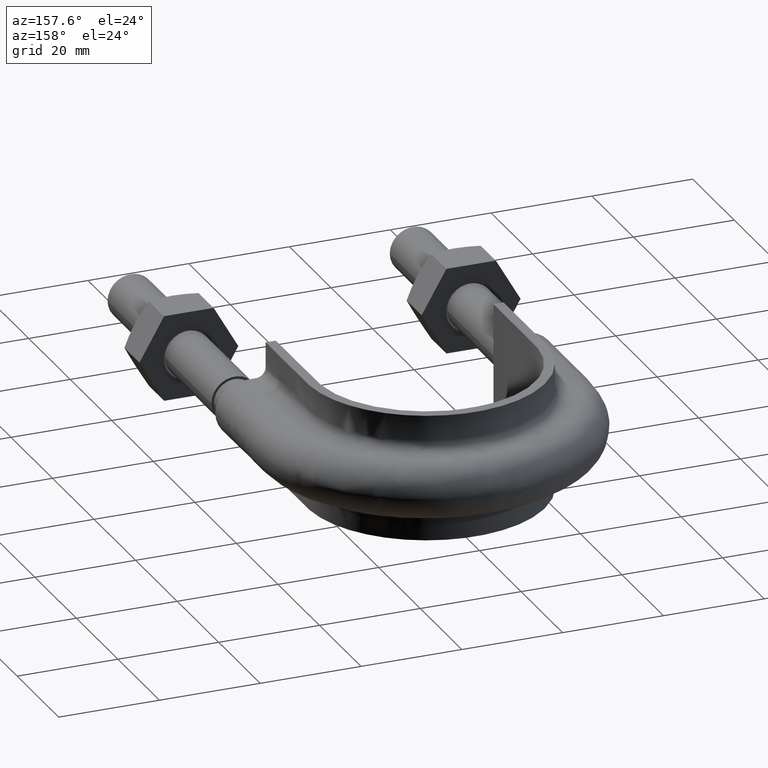
[diagram: clean part render]
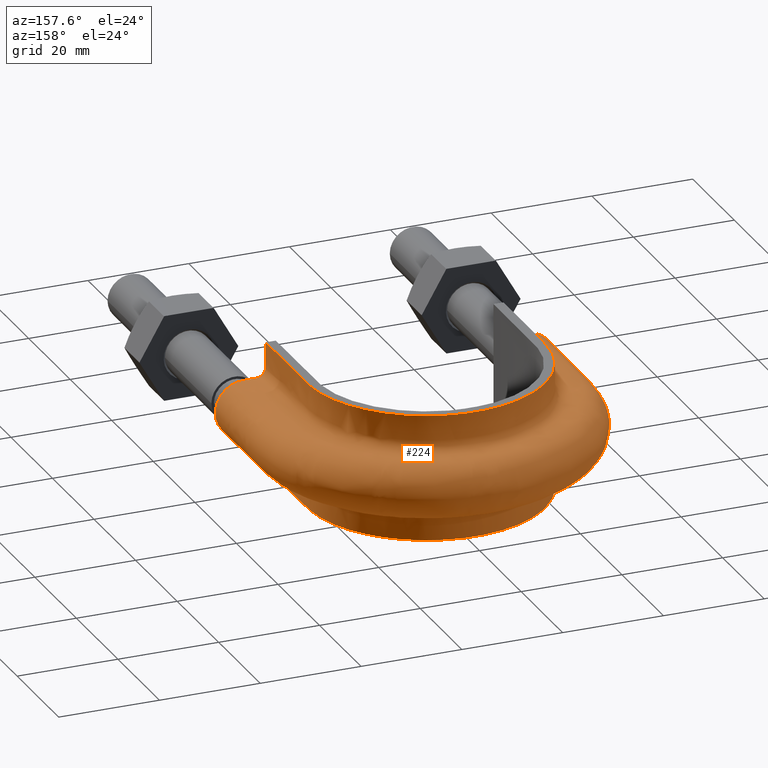
[diagram: same view with one face highlighted and labeled with its STEP entity id]
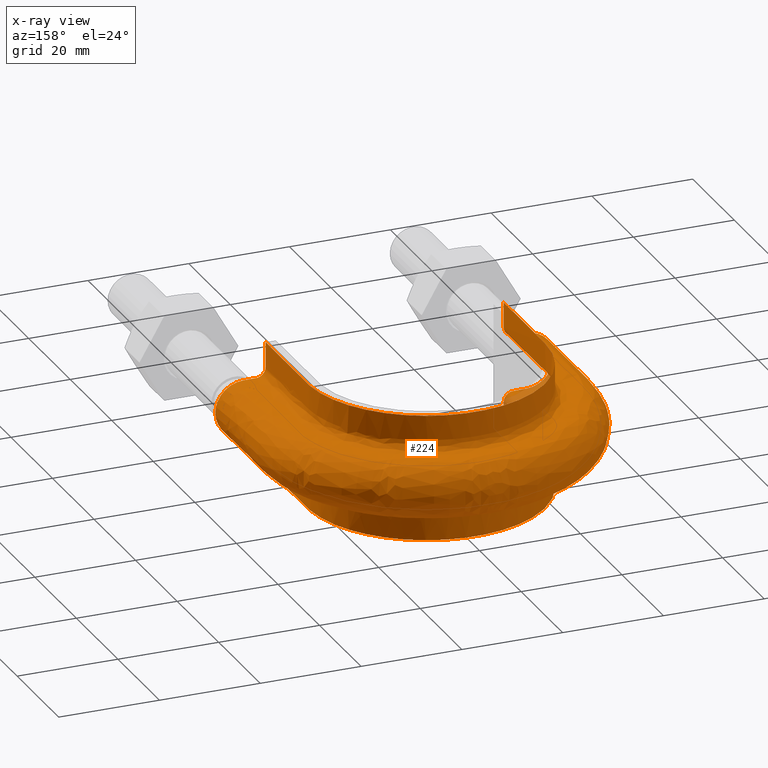
[diagram: x-ray of the same camera — body ghosted, the highlighted face saturated]
A machine part, auxiliary view. The second image highlights one B-rep face of the part: STEP entity #224.
The next image is the same camera in x-ray: the body ghosted, the highlighted face saturated — about 1% of this face is hidden behind the body in this view.
In plain terms, the highlighted face is a freeform B-spline surface patch.
Its self-contained STEP definition (entity closure, byte-faithful):
#224 = ADVANCED_FACE( '', ( #308 ), #309, .F. );
#308 = FACE_OUTER_BOUND( '', #481, .T. );
#309 = B_SPLINE_SURFACE_WITH_KNOTS( '', 3, 3, ( ( #482, #483, #484, #485, #486, #487, #488, #489, #490, #491, #492, #493, #494, #495, #496, #497, #498 ), ( #499, #500, #501, #502, #503, #504, #505, #506, #507, #508, #509, #510, #511, #512, #513, #514, #515 ), ( #516, #517, #518, #519, #520, #521, #522, #523, #524, #525, #526, #527, #528, #529, #530, #531, #532 ), ( #533, #534, #535, #536, #537, #538, #539, #540, #541, #542, #543, #544, #545, #546, #547, #548, #549 ), ( #550, #551, #552, #553, #554, #555, #556, #557, #558, #559, #560, #561, #562, #563, #564, #565, #566 ), ( #567, #568, #569, #570, #571, #572, #573, #574, #575, #576, #577, #578, #579, #580, #581, #582, #583 ), ( #584, #585, #586, #587, #588, #589, #590, #591, #592, #593, #594, #595, #596, #597, #598, #599, #600 ), ( #601, #602, #603, #604, #605, #606, #607, #608, #609, #610, #611, #612, #613, #614, #615, #616, #617 ), ( #618, #619, #620, #621, #622, #623, #624, #625, #626, #627, #628, #629, #630, #631, #632, #633, #634 ), ( #635, #636, #637, #638, #639, #640, #641, #642, #643, #644, #645, #646, #647, #648, #649, #650, #651 ), ( #652, #653, #654, #655, #656, #657, #658, #659, #660, #661, #662, #663, #664, #665, #666, #667, #668 ), ( #669, #670, #671, #672, #673, #674, #675, #676, #677, #678, #679, #680, #681, #682, #683, #684, #685 ), ( #686, #687, #688, #689, #690, #691, #692, #693, #694, #695, #696, #697, #698, #699, #700, #701, #702 ), ( #703, #704, #705, #706, #707, #708, #709, #710, #711, #712, #713, #714, #715, #716, #717, #718, #719 ), ( #720, #721, #722, #723, #724, #725, #726, #727, #728, #729, #730, #731, #732, #733, #734, #735, #736 ), ( #737, #738, #739, #740, #741, #742, #743, #744, #745, #746, #747, #748, #749, #750, #751, #752, #753 ), ( #754, #755, #756, #757, #758, #759, #760, #761, #762, #763, #764, #765, #766, #767, #768, #769, #770 ), ( #771, #772, #773, #774, #775, #776, #777, #778, #779, #780, #781, #782, #783, #784, #785, #786, #787 ), ( #788, #789, #790, #791, #792, #793, #794, #795, #796, #797, #798, #799, #800, #801, #802, #803, #804 ), ( #805, #806, #807, #808, #809, #810, #811, #812, #813, #814, #815, #816, #817, #818, #819, #820, #821 ), ( #822, #823, #824, #825, #826, #827, #828, #829, #830, #831, #832, #833, #834, #835, #836, #837, #838 ), ( #839, #840, #841, #842, #843, #844, #845, #846, #847, #848, #849, #850, #851, #852, #853, #854, #855 ), ( #856, #857, #858, #859, #860, #861, #862, #863, #864, #865, #866, #867, #868, #869, #870, #871, #872 ), ( #873, #874, #875, #876, #877, #878, #879, #880, #881, #882, #883, #884, #885, #886, #887, #888, #889 ), ( #890, #891, #892, #893, #894, #895, #896, #897, #898, #899, #900, #901, #902, #903, #904, #905, #906 ), ( #907, #908, #909, #910, #911, #912, #913, #914, #915, #916, #917, #918, #919, #920, #921, #922, #923 ), ( #924, #925, #926, #927, #928, #929, #930, #931, #932, #933, #934, #935, #936, #937, #938, #939, #940 ), ( #941, #942, #943, #944, #945, #946, #947, #948, #949, #950, #951, #952, #953, #954, #955, #956, #957 ), ( #958, #959, #960, #961, #962, #963, #964, #965, #966, #967, #968, #969, #970, #971, #972, #973, #974 ), ( #975, #976, #977, #978, #979, #980, #981, #982, #983, #984, #985, #986, #987, #988, #989, #990, #991 ), ( #992, #993, #994, #995, #996, #997, #998, #999, #1000, #1001, #1002, #1003, #1004, #1005, #1006, #1007, #1008 ) ), .UNSPECIFIED., .F., .F., .F., ( 4, 3, 1, 1, 1, 3, 3, 1, 1, 1, 3, 3, 1, 1, 1, 3, 4 ), ( 4, 3, 1, 1, 1, 1, 1, 1, 1, 3, 4 ), ( 0.000000000000000, 0.0526315789473684, 0.105263157894737, 0.157894736842105, 0.210526315789474, 0.263157894736842, 0.315789473684211, 0.368421052631579, 0.421052631578947, 0.473684210526316, 0.526315789473684, 0.578947368421053, 0.631578947368421, 0.684210526315789, 0.736842105263158, 0.789473684210526, 0.842105263157895 ), ( 0.000000000000000, 1.00000000000000, 1.50000000000000, 2.00000000000000, 3.00000000000000, 4.00000000000000, 5.00000000000000, 6.00000000000000, 6.50000000000000, 7.00000000000000, 8.00000000000000 ), .UNSPECIFIED. );
#481 = EDGE_LOOP( '', ( #1517, #1518, #1519, #1520 ) );
#482 = CARTESIAN_POINT( '', ( -23.6000000000000, 51.3000000000000, 12.5000000000000 ) );
#483 = CARTESIAN_POINT( '', ( -23.6000000000000, 59.0000000000000, 12.5000000000000 ) );
#484 = CARTESIAN_POINT( '', ( -23.6000000000000, 66.7000000000000, 12.5000000000000 ) );
#485 = CARTESIAN_POINT( '', ( -23.6000000000000, 74.4000000000000, 12.5000000000000 ) );
#486 = CARTESIAN_POINT( '', ( -23.6000000000000, 76.4494146737192, 12.5000000000000 ) );
#487 = CARTESIAN_POINT( '', ( -23.0467901016320, 80.5795237676995, 12.5000000000000 ) );
#488 = CARTESIAN_POINT( '', ( -19.8875260981763, 88.2564442335818, 12.5000000000000 ) );
#489 = CARTESIAN_POINT( '', ( -12.3513075479443, 95.7943830592662, 12.5000000000000 ) );
#490 = CARTESIAN_POINT( '', ( 1.77740441903700E-014, 99.1028084703669, 12.5000000000000 ) );
#491 = CARTESIAN_POINT( '', ( 12.3513075479443, 95.7943830592661, 12.5000000000000 ) );
#492 = CARTESIAN_POINT( '', ( 19.8875260981763, 88.2564442335818, 12.5000000000000 ) );
#493 = CARTESIAN_POINT( '', ( 23.0467901016320, 80.5795237676995, 12.5000000000000 ) );
#494 = CARTESIAN_POINT( '', ( 23.6000000000000, 76.4494146737192, 12.5000000000000 ) );
#495 = CARTESIAN_POINT( '', ( 23.6000000000000, 74.4000000000000, 12.5000000000000 ) );
#496 = CARTESIAN_POINT( '', ( 23.6000000000000, 66.7000000000000, 12.5000000000000 ) );
#497 = CARTESIAN_POINT( '', ( 23.6000000000000, 59.0000000000000, 12.5000000000000 ) );
#498 = CARTESIAN_POINT( '', ( 23.6000000000000, 51.3000000000000, 12.5000000000000 ) );
#499 = CARTESIAN_POINT( '', ( -23.6000000000000, 51.3000000000000, 10.8666666666667 ) );
#500 = CARTESIAN_POINT( '', ( -23.6000000000000, 59.0000000000000, 10.8666666666667 ) );
#501 = CARTESIAN_POINT( '', ( -23.6000000000000, 66.7000000000000, 10.8666666666667 ) );
#502 = CARTESIAN_POINT( '', ( -23.6000000000000, 74.4000000000000, 10.8666666666667 ) );
#503 = CARTESIAN_POINT( '', ( -23.6000000000000, 76.4494146737192, 10.8666666666667 ) );
#504 = CARTESIAN_POINT( '', ( -23.0467901016320, 80.5795237676995, 10.8666666666667 ) );
#505 = CARTESIAN_POINT( '', ( -19.8875260981763, 88.2564442335818, 10.8666666666667 ) );
#506 = CARTESIAN_POINT( '', ( -12.3513075479443, 95.7943830592662, 10.8666666666667 ) );
#507 = CARTESIAN_POINT( '', ( 1.95087676663468E-014, 99.1028084703669, 10.8666666666667 ) );
#508 = CARTESIAN_POINT( '', ( 12.3513075479443, 95.7943830592661, 10.8666666666667 ) );
#509 = CARTESIAN_POINT( '', ( 19.8875260981763, 88.2564442335818, 10.8666666666667 ) );
#510 = CARTESIAN_POINT( '', ( 23.0467901016320, 80.5795237676995, 10.8666666666667 ) );
#511 = CARTESIAN_POINT( '', ( 23.6000000000000, 76.4494146737192, 10.8666666666667 ) );
#512 = CARTESIAN_POINT( '', ( 23.6000000000000, 74.4000000000000, 10.8666666666667 ) );
#513 = CARTESIAN_POINT( '', ( 23.6000000000000, 66.7000000000000, 10.8666666666667 ) );
#514 = CARTESIAN_POINT( '', ( 23.6000000000000, 59.0000000000000, 10.8666666666667 ) );
#515 = CARTESIAN_POINT( '', ( 23.6000000000000, 51.3000000000000, 10.8666666666667 ) );
#516 = CARTESIAN_POINT( '', ( -23.6000000000000, 51.3000000000000, 9.23333333333332 ) );
#517 = CARTESIAN_POINT( '', ( -23.6000000000000, 59.0000000000000, 9.23333333333332 ) );
#518 = CARTESIAN_POINT( '', ( -23.6000000000000, 66.7000000000000, 9.23333333333332 ) );
#519 = CARTESIAN_POINT( '', ( -23.6000000000000, 74.4000000000000, 9.23333333333332 ) );
#520 = CARTESIAN_POINT( '', ( -23.6000000000000, 76.4494146737192, 9.23333333333332 ) );
#521 = CARTESIAN_POINT( '', ( -23.0467901016320, 80.5795237676995, 9.23333333333333 ) );
#522 = CARTESIAN_POINT( '', ( -19.8875260981763, 88.2564442335818, 9.23333333333332 ) );
#523 = CARTESIAN_POINT( '', ( -12.3513075479443, 95.7943830592662, 9.23333333333332 ) );
#524 = CARTESIAN_POINT( '', ( 1.95087676663468E-014, 99.1028084703669, 9.23333333333332 ) );
#525 = CARTESIAN_POINT( '', ( 12.3513075479443, 95.7943830592661, 9.23333333333332 ) );
#526 = CARTESIAN_POINT( '', ( 19.8875260981763, 88.2564442335818, 9.23333333333332 ) );
#527 = CARTESIAN_POINT( '', ( 23.0467901016320, 80.5795237676995, 9.23333333333332 ) );
#528 = CARTESIAN_POINT( '', ( 23.6000000000000, 76.4494146737192, 9.23333333333332 ) );
#529 = CARTESIAN_POINT( '', ( 23.6000000000000, 74.4000000000000, 9.23333333333332 ) );
#530 = CARTESIAN_POINT( '', ( 23.6000000000000, 66.7000000000000, 9.23333333333332 ) );
#531 = CARTESIAN_POINT( '', ( 23.6000000000000, 59.0000000000000, 9.23333333333332 ) );
#532 = CARTESIAN_POINT( '', ( 23.6000000000000, 51.3000000000000, 9.23333333333332 ) );
#533 = CARTESIAN_POINT( '', ( -23.6000000000000, 51.3000000000000, 7.59999999999998 ) );
#534 = CARTESIAN_POINT( '', ( -23.6000000000000, 59.0000000000000, 7.59999999999998 ) );
#535 = CARTESIAN_POINT( '', ( -23.6000000000000, 66.7000000000000, 7.59999999999998 ) );
#536 = CARTESIAN_POINT( '', ( -23.6000000000000, 74.4000000000000, 7.59999999999998 ) );
#537 = CARTESIAN_POINT( '', ( -23.6000000000000, 76.4494146737192, 7.59999999999998 ) );
#538 = CARTESIAN_POINT( '', ( -23.0467901016320, 80.5795237676995, 7.59999999999999 ) );
#539 = CARTESIAN_POINT( '', ( -19.8875260981763, 88.2564442335818, 7.59999999999998 ) );
#540 = CARTESIAN_POINT( '', ( -12.3513075479443, 95.7943830592662, 7.59999999999998 ) );
#541 = CARTESIAN_POINT( '', ( 1.95087676663468E-014, 99.1028084703669, 7.59999999999998 ) );
#542 = CARTESIAN_POINT( '', ( 12.3513075479443, 95.7943830592661, 7.59999999999998 ) );
#543 = CARTESIAN_POINT( '', ( 19.8875260981763, 88.2564442335818, 7.59999999999998 ) );
#544 = CARTESIAN_POINT( '', ( 23.0467901016320, 80.5795237676995, 7.59999999999998 ) );
#545 = CARTESIAN_POINT( '', ( 23.6000000000000, 76.4494146737192, 7.59999999999998 ) );
#546 = CARTESIAN_POINT( '', ( 23.6000000000000, 74.4000000000000, 7.59999999999998 ) );
#547 = CARTESIAN_POINT( '', ( 23.6000000000000, 66.7000000000000, 7.59999999999998 ) );
#548 = CARTESIAN_POINT( '', ( 23.6000000000000, 59.0000000000000, 7.59999999999998 ) );
#549 = CARTESIAN_POINT( '', ( 23.6000000000000, 51.3000000000000, 7.59999999999998 ) );
#550 = CARTESIAN_POINT( '', ( -23.6000000000000, 51.3000000000000, 7.33823584172332 ) );
#551 = CARTESIAN_POINT( '', ( -23.6000000000000, 59.0000000000000, 7.33823584172332 ) );
#552 = CARTESIAN_POINT( '', ( -23.6000000000000, 66.7000000000000, 7.33823584172332 ) );
#553 = CARTESIAN_POINT( '', ( -23.6000000000000, 74.4000000000000, 7.33823584172332 ) );
#554 = CARTESIAN_POINT( '', ( -23.6000000000000, 76.4494146737192, 7.33823584172332 ) );
#555 = CARTESIAN_POINT( '', ( -23.0467901016320, 80.5795237676995, 7.33823584172333 ) );
#556 = CARTESIAN_POINT( '', ( -19.8875260981763, 88.2564442335818, 7.33823584172331 ) );
#557 = CARTESIAN_POINT( '', ( -12.3513075479443, 95.7943830592662, 7.33823584172332 ) );
#558 = CARTESIAN_POINT( '', ( 1.95087676663468E-014, 99.1028084703669, 7.33823584172332 ) );
#559 = CARTESIAN_POINT( '', ( 12.3513075479443, 95.7943830592661, 7.33823584172332 ) );
#560 = CARTESIAN_POINT( '', ( 19.8875260981763, 88.2564442335818, 7.33823584172332 ) );
#561 = CARTESIAN_POINT( '', ( 23.0467901016320, 80.5795237676995, 7.33823584172332 ) );
#562 = CARTESIAN_POINT( '', ( 23.6000000000000, 76.4494146737192, 7.33823584172332 ) );
#563 = CARTESIAN_POINT( '', ( 23.6000000000000, 74.4000000000000, 7.33823584172332 ) );
#564 = CARTESIAN_POINT( '', ( 23.6000000000000, 66.7000000000000, 7.33823584172332 ) );
#565 = CARTESIAN_POINT( '', ( 23.6000000000000, 59.0000000000000, 7.33823584172332 ) );
#566 = CARTESIAN_POINT( '', ( 23.6000000000000, 51.3000000000000, 7.33823584172332 ) );
#567 = CARTESIAN_POINT( '', ( -23.7041362568359, 51.3000000000000, 6.81470752516999 ) );
#568 = CARTESIAN_POINT( '', ( -23.7041362568359, 59.0000000000000, 6.81470752516999 ) );
#569 = CARTESIAN_POINT( '', ( -23.7041362568359, 66.7000000000000, 6.81470752516999 ) );
#570 = CARTESIAN_POINT( '', ( -23.7041362568359, 74.4000000000000, 6.81470752516999 ) );
#571 = CARTESIAN_POINT( '', ( -23.7041362568359, 76.4587157490265, 6.81470752516999 ) );
#572 = CARTESIAN_POINT( '', ( -23.1485304899896, 80.6066866855034, 6.81470752517000 ) );
#573 = CARTESIAN_POINT( '', ( -19.9752548421632, 88.3176470663864, 6.81470752516999 ) );
#574 = CARTESIAN_POINT( '', ( -12.4058165683978, 95.8887649012753, 6.81470752516999 ) );
#575 = CARTESIAN_POINT( '', ( 1.95221175244440E-014, 99.2118219346163, 6.81470752516999 ) );
#576 = CARTESIAN_POINT( '', ( 12.4058165683979, 95.8887649012753, 6.81470752516999 ) );
#577 = CARTESIAN_POINT( '', ( 19.9752548421632, 88.3176470663864, 6.81470752517000 ) );
#578 = CARTESIAN_POINT( '', ( 23.1485304899897, 80.6066866855034, 6.81470752517000 ) );
#579 = CARTESIAN_POINT( '', ( 23.7041362568359, 76.4587157490265, 6.81470752516999 ) );
#580 = CARTESIAN_POINT( '', ( 23.7041362568359, 74.4000000000000, 6.81470752516999 ) );
#581 = CARTESIAN_POINT( '', ( 23.7041362568359, 66.7000000000000, 6.81470752516999 ) );
#582 = CARTESIAN_POINT( '', ( 23.7041362568359, 59.0000000000000, 6.81470752516999 ) );
#583 = CARTESIAN_POINT( '', ( 23.7041362568359, 51.3000000000000, 6.81470752516999 ) );
#584 = CARTESIAN_POINT( '', ( -24.1489687109389, 51.3000000000000, 6.14896871093886 ) );
#585 = CARTESIAN_POINT( '', ( -24.1489687109389, 59.0000000000000, 6.14896871093886 ) );
#586 = CARTESIAN_POINT( '', ( -24.1489687109389, 66.7000000000000, 6.14896871093886 ) );
#587 = CARTESIAN_POINT( '', ( -24.1489687109389, 74.4000000000000, 6.14896871093886 ) );
#588 = CARTESIAN_POINT( '', ( -24.1489687109389, 76.4984465813078, 6.14896871093886 ) );
#589 = CARTESIAN_POINT( '', ( -23.5831286598263, 80.7227168536161, 6.14896871093887 ) );
#590 = CARTESIAN_POINT( '', ( -20.3500003310907, 88.5790834492726, 6.14896871093886 ) );
#591 = CARTESIAN_POINT( '', ( -12.6386594040810, 96.2919300205080, 6.14896871093886 ) );
#592 = CARTESIAN_POINT( '', ( 1.69770580795983E-014, 99.6774880561543, 6.14896871093886 ) );
#593 = CARTESIAN_POINT( '', ( 12.6386594040810, 96.2919300205079, 6.14896871093886 ) );
#594 = CARTESIAN_POINT( '', ( 20.3500003310907, 88.5790834492726, 6.14896871093886 ) );
#595 = CARTESIAN_POINT( '', ( 23.5831286598263, 80.7227168536161, 6.14896871093886 ) );
#596 = CARTESIAN_POINT( '', ( 24.1489687109389, 76.4984465813079, 6.14896871093886 ) );
#597 = CARTESIAN_POINT( '', ( 24.1489687109389, 74.4000000000000, 6.14896871093886 ) );
#598 = CARTESIAN_POINT( '', ( 24.1489687109389, 66.7000000000000, 6.14896871093886 ) );
#599 = CARTESIAN_POINT( '', ( 24.1489687109389, 59.0000000000000, 6.14896871093886 ) );
#600 = CARTESIAN_POINT( '', ( 24.1489687109389, 51.3000000000000, 6.14896871093886 ) );
#601 = CARTESIAN_POINT( '', ( -24.8147075251700, 51.3000000000000, 5.70413625683589 ) );
#602 = CARTESIAN_POINT( '', ( -24.8147075251700, 59.0000000000000, 5.70413625683589 ) );
#603 = CARTESIAN_POINT( '', ( -24.8147075251700, 66.7000000000000, 5.70413625683589 ) );
#604 = CARTESIAN_POINT( '', ( -24.8147075251700, 74.4000000000000, 5.70413625683589 ) );
#605 = CARTESIAN_POINT( '', ( -24.8147075251700, 76.5579079738556, 5.70413625683589 ) );
#606 = CARTESIAN_POINT( '', ( -24.2335507852478, 80.8963682718565, 5.70413625683590 ) );
#607 = CARTESIAN_POINT( '', ( -20.9108465893525, 88.9703506464706, 5.70413625683589 ) );
#608 = CARTESIAN_POINT( '', ( -12.9871333337597, 96.8953092612573, 5.70413625683589 ) );
#609 = CARTESIAN_POINT( '', ( 1.61950414362946E-014, 100.374406657126, 5.70413625683589 ) );
#610 = CARTESIAN_POINT( '', ( 12.9871333337597, 96.8953092612572, 5.70413625683589 ) );
#611 = CARTESIAN_POINT( '', ( 20.9108465893526, 88.9703506464706, 5.70413625683589 ) );
#612 = CARTESIAN_POINT( '', ( 24.2335507852478, 80.8963682718565, 5.70413625683589 ) );
#613 = CARTESIAN_POINT( '', ( 24.8147075251700, 76.5579079738556, 5.70413625683589 ) );
#614 = CARTESIAN_POINT( '', ( 24.8147075251700, 74.4000000000000, 5.70413625683589 ) );
#615 = CARTESIAN_POINT( '', ( 24.8147075251700, 66.7000000000000, 5.70413625683589 ) );
#616 = CARTESIAN_POINT( '', ( 24.8147075251700, 59.0000000000000, 5.70413625683589 ) );
#617 = CARTESIAN_POINT( '', ( 24.8147075251700, 51.3000000000000, 5.70413625683589 ) );
#618 = CARTESIAN_POINT( '', ( -25.3382358417233, 51.3000000000000, 5.59999999999998 ) );
#619 = CARTESIAN_POINT( '', ( -25.3382358417233, 59.0000000000000, 5.59999999999998 ) );
#620 = CARTESIAN_POINT( '', ( -25.3382358417233, 66.7000000000000, 5.59999999999998 ) );
#621 = CARTESIAN_POINT( '', ( -25.3382358417233, 74.4000000000000, 5.59999999999998 ) );
#622 = CARTESIAN_POINT( '', ( -25.3382358417233, 76.6046676370674, 5.59999999999998 ) );
#623 = CARTESIAN_POINT( '', ( -24.7450342575825, 81.0329254812533, 5.59999999999999 ) );
#624 = CARTESIAN_POINT( '', ( -21.3518887685924, 89.2780380648588, 5.59999999999998 ) );
#625 = CARTESIAN_POINT( '', ( -13.2611686849629, 97.3697988229295, 5.59999999999998 ) );
#626 = CARTESIAN_POINT( '', ( 1.45274322291441E-014, 100.922454351120, 5.59999999999998 ) );
#627 = CARTESIAN_POINT( '', ( 13.2611686849630, 97.3697988229295, 5.59999999999998 ) );
#628 = CARTESIAN_POINT( '', ( 21.3518887685924, 89.2780380648588, 5.59999999999998 ) );
#629 = CARTESIAN_POINT( '', ( 24.7450342575825, 81.0329254812533, 5.59999999999999 ) );
#630 = CARTESIAN_POINT( '', ( 25.3382358417233, 76.6046676370674, 5.59999999999998 ) );
#631 = CARTESIAN_POINT( '', ( 25.3382358417234, 74.4000000000000, 5.59999999999998 ) );
#632 = CARTESIAN_POINT( '', ( 25.3382358417233, 66.7000000000000, 5.59999999999998 ) );
#633 = CARTESIAN_POINT( '', ( 25.3382358417233, 59.0000000000000, 5.59999999999998 ) );
#634 = CARTESIAN_POINT( '', ( 25.3382358417233, 51.3000000000000, 5.59999999999998 ) );
#635 = CARTESIAN_POINT( '', ( -25.6000000000000, 51.3000000000000, 5.59999999999998 ) );
#636 = CARTESIAN_POINT( '', ( -25.6000000000000, 59.0000000000000, 5.59999999999998 ) );
#637 = CARTESIAN_POINT( '', ( -25.6000000000000, 66.7000000000000, 5.59999999999998 ) );
#638 = CARTESIAN_POINT( '', ( -25.6000000000000, 74.4000000000000, 5.59999999999998 ) );
#639 = CARTESIAN_POINT( '', ( -25.6000000000000, 76.6280474686732, 5.59999999999998 ) );
#640 = CARTESIAN_POINT( '', ( -25.0007759937498, 81.1012040859518, 5.59999999999999 ) );
#641 = CARTESIAN_POINT( '', ( -21.5724098582123, 89.4318817740529, 5.59999999999998 ) );
#642 = CARTESIAN_POINT( '', ( -13.3981863605645, 97.6070436037656, 5.59999999999998 ) );
#643 = CARTESIAN_POINT( '', ( 1.41273084945630E-014, 101.196478198117, 5.59999999999998 ) );
#644 = CARTESIAN_POINT( '', ( 13.3981863605645, 97.6070436037656, 5.59999999999998 ) );
#645 = CARTESIAN_POINT( '', ( 21.5724098582123, 89.4318817740529, 5.59999999999998 ) );
#646 = CARTESIAN_POINT( '', ( 25.0007759937498, 81.1012040859517, 5.59999999999999 ) );
#647 = CARTESIAN_POINT( '', ( 25.6000000000000, 76.6280474686733, 5.59999999999998 ) );
#648 = CARTESIAN_POINT( '', ( 25.6000000000000, 74.4000000000000, 5.59999999999998 ) );
#649 = CARTESIAN_POINT( '', ( 25.6000000000000, 66.7000000000000, 5.59999999999998 ) );
#650 = CARTESIAN_POINT( '', ( 25.6000000000000, 59.0000000000000, 5.59999999999998 ) );
#651 = CARTESIAN_POINT( '', ( 25.6000000000000, 51.3000000000000, 5.59999999999998 ) );
#652 = CARTESIAN_POINT( '', ( -26.4000000000000, 51.3000000000000, 5.60000000000000 ) );
#653 = CARTESIAN_POINT( '', ( -26.4000000000000, 59.0000000000000, 5.60000000000000 ) );
#654 = CARTESIAN_POINT( '', ( -26.4000000000000, 66.7000000000000, 5.60000000000000 ) );
#655 = CARTESIAN_POINT( '', ( -26.4000000000000, 74.4000000000000, 5.60000000000000 ) );
#656 = CARTESIAN_POINT( '', ( -26.4000000000000, 76.6995005866549, 5.60000000000000 ) );
#657 = CARTESIAN_POINT( '', ( -25.7823703505969, 81.3098762132526, 5.60000000000001 ) );
#658 = CARTESIAN_POINT( '', ( -22.2463633622267, 89.9020567902413, 5.60000000000000 ) );
#659 = CARTESIAN_POINT( '', ( -13.8169378856126, 98.3321078215653, 5.60000000000000 ) );
#660 = CARTESIAN_POINT( '', ( 1.46635462136136E-014, 102.033946089217, 5.60000000000000 ) );
#661 = CARTESIAN_POINT( '', ( 13.8169378856126, 98.3321078215653, 5.60000000000000 ) );
#662 = CARTESIAN_POINT( '', ( 22.2463633622267, 89.9020567902413, 5.60000000000000 ) );
#663 = CARTESIAN_POINT( '', ( 25.7823703505970, 81.3098762132526, 5.60000000000000 ) );
#664 = CARTESIAN_POINT( '', ( 26.4000000000000, 76.6995005866549, 5.60000000000000 ) );
#665 = CARTESIAN_POINT( '', ( 26.4000000000000, 74.4000000000000, 5.60000000000000 ) );
#666 = CARTESIAN_POINT( '', ( 26.4000000000000, 66.7000000000000, 5.60000000000000 ) );
#667 = CARTESIAN_POINT( '', ( 26.4000000000000, 59.0000000000000, 5.60000000000000 ) );
#668 = CARTESIAN_POINT( '', ( 26.4000000000000, 51.3000000000000, 5.60000000000000 ) );
#669 = CARTESIAN_POINT( '', ( -27.2000000000000, 51.3000000000000, 5.60000000000000 ) );
#670 = CARTESIAN_POINT( '', ( -27.2000000000000, 59.0000000000000, 5.60000000000000 ) );
#671 = CARTESIAN_POINT( '', ( -27.2000000000000, 66.7000000000000, 5.60000000000000 ) );
#672 = CARTESIAN_POINT( '', ( -27.2000000000000, 74.4000000000000, 5.60000000000000 ) );
#673 = CARTESIAN_POINT( '', ( -27.2000000000000, 76.7709537046365, 5.60000000000000 ) );
#674 = CARTESIAN_POINT( '', ( -26.5639647074441, 81.5185483405535, 5.60000000000001 ) );
#675 = CARTESIAN_POINT( '', ( -22.9203168662411, 90.3722318064297, 5.60000000000000 ) );
#676 = CARTESIAN_POINT( '', ( -14.2356894106607, 99.0571720393651, 5.60000000000000 ) );
#677 = CARTESIAN_POINT( '', ( 1.38987413256815E-014, 102.871413980318, 5.60000000000000 ) );
#678 = CARTESIAN_POINT( '', ( 14.2356894106607, 99.0571720393651, 5.60000000000000 ) );
#679 = CARTESIAN_POINT( '', ( 22.9203168662411, 90.3722318064297, 5.60000000000000 ) );
#680 = CARTESIAN_POINT( '', ( 26.5639647074441, 81.5185483405535, 5.60000000000000 ) );
#681 = CARTESIAN_POINT( '', ( 27.2000000000000, 76.7709537046365, 5.60000000000000 ) );
#682 = CARTESIAN_POINT( '', ( 27.2000000000000, 74.4000000000000, 5.60000000000000 ) );
#683 = CARTESIAN_POINT( '', ( 27.2000000000000, 66.7000000000000, 5.60000000000000 ) );
#684 = CARTESIAN_POINT( '', ( 27.2000000000000, 59.0000000000000, 5.60000000000000 ) );
#685 = CARTESIAN_POINT( '', ( 27.2000000000000, 51.3000000000000, 5.60000000000000 ) );
#686 = CARTESIAN_POINT( '', ( -28.0000000000000, 51.3000000000000, 5.60000000000000 ) );
#687 = CARTESIAN_POINT( '', ( -28.0000000000000, 59.0000000000000, 5.60000000000000 ) );
#688 = CARTESIAN_POINT( '', ( -28.0000000000000, 66.7000000000000, 5.60000000000000 ) );
#689 = CARTESIAN_POINT( '', ( -28.0000000000000, 74.4000000000000, 5.60000000000000 ) );
#690 = CARTESIAN_POINT( '', ( -28.0000000000000, 76.8424068226181, 5.60000000000000 ) );
#691 = CARTESIAN_POINT( '', ( -27.3455590642912, 81.7272204678544, 5.60000000000001 ) );
#692 = CARTESIAN_POINT( '', ( -23.5942703702555, 90.8424068226181, 5.60000000000000 ) );
#693 = CARTESIAN_POINT( '', ( -14.6544409357088, 99.7822362571648, 5.60000000000000 ) );
#694 = CARTESIAN_POINT( '', ( 1.35676173067436E-014, 103.708881871418, 5.60000000000000 ) );
#695 = CARTESIAN_POINT( '', ( 14.6544409357088, 99.7822362571648, 5.60000000000000 ) );
#696 = CARTESIAN_POINT( '', ( 23.5942703702555, 90.8424068226182, 5.60000000000000 ) );
#697 = CARTESIAN_POINT( '', ( 27.3455590642912, 81.7272204678544, 5.60000000000000 ) );
#698 = CARTESIAN_POINT( '', ( 28.0000000000000, 76.8424068226182, 5.60000000000000 ) );
#699 = CARTESIAN_POINT( '', ( 28.0000000000000, 74.4000000000000, 5.60000000000000 ) );
#700 = CARTESIAN_POINT( '', ( 28.0000000000000, 66.7000000000000, 5.60000000000000 ) );
#701 = CARTESIAN_POINT( '', ( 28.0000000000000, 59.0000000000000, 5.60000000000000 ) );
#702 = CARTESIAN_POINT( '', ( 28.0000000000000, 51.3000000000000, 5.60000000000000 ) );
#703 = CARTESIAN_POINT( '', ( -29.4627416997969, 51.3000000000000, 5.60000000000000 ) );
#704 = CARTESIAN_POINT( '', ( -29.4627416997969, 59.0000000000000, 5.60000000000000 ) );
#705 = CARTESIAN_POINT( '', ( -29.4627416997969, 66.7000000000000, 5.60000000000000 ) );
#706 = CARTESIAN_POINT( '', ( -29.4627416997969, 74.4000000000000, 5.60000000000000 ) );
#707 = CARTESIAN_POINT( '', ( -29.4627416997969, 76.9730536416834, 5.60000000000000 ) );
#708 = CARTESIAN_POINT( '', ( -28.7746473868990, 82.1087622455898, 5.60000000000001 ) );
#709 = CARTESIAN_POINT( '', ( -24.8265452378131, 91.7020875755950, 5.60000000000000 ) );
#710 = CARTESIAN_POINT( '', ( -15.4200975826355, 101.107963340173, 5.60000000000000 ) );
#711 = CARTESIAN_POINT( '', ( 1.02856880812616E-014, 105.240130879609, 5.60000000000000 ) );
#712 = CARTESIAN_POINT( '', ( 15.4200975826356, 101.107963340173, 5.60000000000000 ) );
#713 = CARTESIAN_POINT( '', ( 24.8265452378131, 91.7020875755950, 5.60000000000000 ) );
#714 = CARTESIAN_POINT( '', ( 28.7746473868991, 82.1087622455898, 5.60000000000000 ) );
#715 = CARTESIAN_POINT( '', ( 29.4627416997970, 76.9730536416835, 5.60000000000000 ) );
#716 = CARTESIAN_POINT( '', ( 29.4627416997970, 74.4000000000000, 5.60000000000000 ) );
#717 = CARTESIAN_POINT( '', ( 29.4627416997970, 66.7000000000000, 5.60000000000000 ) );
#718 = CARTESIAN_POINT( '', ( 29.4627416997970, 59.0000000000000, 5.60000000000000 ) );
#719 = CARTESIAN_POINT( '', ( 29.4627416997970, 51.3000000000000, 5.60000000000000 ) );
#720 = CARTESIAN_POINT( '', ( -32.3882250993908, 51.3000000000000, 4.38822509939086 ) );
#721 = CARTESIAN_POINT( '', ( -32.3882250993908, 59.0000000000000, 4.38822509939086 ) );
#722 = CARTESIAN_POINT( '', ( -32.3882250993908, 66.7000000000000, 4.38822509939086 ) );
#723 = CARTESIAN_POINT( '', ( -32.3882250993908, 74.4000000000000, 4.38822509939086 ) );
#724 = CARTESIAN_POINT( '', ( -32.3882250993908, 77.2343472798141, 4.38822509939086 ) );
#725 = CARTESIAN_POINT( '', ( -31.6328240321147, 82.8718458010607, 4.38822509939086 ) );
#726 = CARTESIAN_POINT( '', ( -27.2910949729284, 93.4214490815488, 4.38822509939086 ) );
#727 = CARTESIAN_POINT( '', ( -16.9514108764890, 103.759417506189, 4.38822509939086 ) );
#728 = CARTESIAN_POINT( '', ( 8.05863832023945E-015, 108.302628895992, 4.38822509939086 ) );
#729 = CARTESIAN_POINT( '', ( 16.9514108764891, 103.759417506189, 4.38822509939086 ) );
#730 = CARTESIAN_POINT( '', ( 27.2910949729285, 93.4214490815488, 4.38822509939086 ) );
#731 = CARTESIAN_POINT( '', ( 31.6328240321147, 82.8718458010607, 4.38822509939086 ) );
#732 = CARTESIAN_POINT( '', ( 32.3882250993909, 77.2343472798141, 4.38822509939086 ) );
#733 = CARTESIAN_POINT( '', ( 32.3882250993909, 74.4000000000000, 4.38822509939086 ) );
#734 = CARTESIAN_POINT( '', ( 32.3882250993909, 66.7000000000000, 4.38822509939086 ) );
#735 = CARTESIAN_POINT( '', ( 32.3882250993909, 59.0000000000000, 4.38822509939086 ) );
#736 = CARTESIAN_POINT( '', ( 32.3882250993909, 51.3000000000000, 4.38822509939086 ) );
#737 = CARTESIAN_POINT( '', ( -34.2058874503046, 51.3000000000000, 2.59688645100852E-015 ) );
#738 = CARTESIAN_POINT( '', ( -34.2058874503046, 59.0000000000000, 2.59688645100852E-015 ) );
#739 = CARTESIAN_POINT( '', ( -34.2058874503046, 66.7000000000000, 2.59688645100852E-015 ) );
#740 = CARTESIAN_POINT( '', ( -34.2058874503046, 74.4000000000000, 2.59688645100852E-015 ) );
#741 = CARTESIAN_POINT( '', ( -34.2058874503046, 77.3966943328273, 2.59688645100852E-015 ) );
#742 = CARTESIAN_POINT( '', ( -33.4086673272743, 83.3459651379106, 2.59688645100852E-015 ) );
#743 = CARTESIAN_POINT( '', ( -28.8223698610701, 94.4897233631312, 2.59688645100852E-015 ) );
#744 = CARTESIAN_POINT( '', ( -17.9028469783236, 105.406819919550, 2.59688645100852E-015 ) );
#745 = CARTESIAN_POINT( '', ( 5.68957026274389E-015, 110.205421215682, 2.59688645100852E-015 ) );
#746 = CARTESIAN_POINT( '', ( 17.9028469783236, 105.406819919550, 2.59688645100852E-015 ) );
#747 = CARTESIAN_POINT( '', ( 28.8223698610701, 94.4897233631313, 2.59688645100852E-015 ) );
#748 = CARTESIAN_POINT( '', ( 33.4086673272743, 83.3459651379106, 2.59688645100852E-015 ) );
#749 = CARTESIAN_POINT( '', ( 34.2058874503046, 77.3966943328274, 2.59688645100852E-015 ) );
#750 = CARTESIAN_POINT( '', ( 34.2058874503046, 74.4000000000000, 2.59688645100852E-015 ) );
#751 = CARTESIAN_POINT( '', ( 34.2058874503046, 66.7000000000000, 2.59688645100852E-015 ) );
#752 = CARTESIAN_POINT( '', ( 34.2058874503046, 59.0000000000000, 2.59688645100852E-015 ) );
#753 = CARTESIAN_POINT( '', ( 34.2058874503046, 51.3000000000000, 2.59688645100852E-015 ) );
#754 = CARTESIAN_POINT( '', ( -32.3882250993908, 51.3000000000000, -4.38822509939085 ) );
#755 = CARTESIAN_POINT( '', ( -32.3882250993908, 59.0000000000000, -4.38822509939085 ) );
#756 = CARTESIAN_POINT( '', ( -32.3882250993908, 66.7000000000000, -4.38822509939085 ) );
#757 = CARTESIAN_POINT( '', ( -32.3882250993908, 74.4000000000000, -4.38822509939085 ) );
#758 = CARTESIAN_POINT( '', ( -32.3882250993908, 77.2343472798141, -4.38822509939085 ) );
#759 = CARTESIAN_POINT( '', ( -31.6328240321147, 82.8718458010607, -4.38822509939086 ) );
#760 = CARTESIAN_POINT( '', ( -27.2910949729284, 93.4214490815488, -4.38822509939085 ) );
#761 = CARTESIAN_POINT( '', ( -16.9514108764890, 103.759417506189, -4.38822509939085 ) );
#762 = CARTESIAN_POINT( '', ( 8.05863832023945E-015, 108.302628895992, -4.38822509939085 ) );
#763 = CARTESIAN_POINT( '', ( 16.9514108764891, 103.759417506189, -4.38822509939085 ) );
#764 = CARTESIAN_POINT( '', ( 27.2910949729285, 93.4214490815488, -4.38822509939085 ) );
#765 = CARTESIAN_POINT( '', ( 31.6328240321147, 82.8718458010607, -4.38822509939085 ) );
#766 = CARTESIAN_POINT( '', ( 32.3882250993909, 77.2343472798141, -4.38822509939085 ) );
#767 = CARTESIAN_POINT( '', ( 32.3882250993909, 74.4000000000000, -4.38822509939085 ) );
#768 = CARTESIAN_POINT( '', ( 32.3882250993909, 66.7000000000000, -4.38822509939085 ) );
#769 = CARTESIAN_POINT( '', ( 32.3882250993909, 59.0000000000000, -4.38822509939085 ) );
#770 = CARTESIAN_POINT( '', ( 32.3882250993909, 51.3000000000000, -4.38822509939085 ) );
#771 = CARTESIAN_POINT( '', ( -29.4627416997969, 51.3000000000000, -5.60000000000000 ) );
#772 = CARTESIAN_POINT( '', ( -29.4627416997969, 59.0000000000000, -5.60000000000000 ) );
#773 = CARTESIAN_POINT( '', ( -29.4627416997969, 66.7000000000000, -5.60000000000000 ) );
#774 = CARTESIAN_POINT( '', ( -29.4627416997969, 74.4000000000000, -5.60000000000000 ) );
#775 = CARTESIAN_POINT( '', ( -29.4627416997969, 76.9730536416834, -5.59999999999999 ) );
#776 = CARTESIAN_POINT( '', ( -28.7746473868990, 82.1087622455899, -5.60000000000000 ) );
#777 = CARTESIAN_POINT( '', ( -24.8265452378131, 91.7020875755950, -5.59999999999999 ) );
#778 = CARTESIAN_POINT( '', ( -15.4200975826355, 101.107963340173, -5.60000000000000 ) );
#779 = CARTESIAN_POINT( '', ( 9.41832634327317E-015, 105.240130879609, -5.59999999999999 ) );
#780 = CARTESIAN_POINT( '', ( 15.4200975826356, 101.107963340173, -5.59999999999999 ) );
#781 = CARTESIAN_POINT( '', ( 24.8265452378131, 91.7020875755951, -5.60000000000000 ) );
#782 = CARTESIAN_POINT( '', ( 28.7746473868991, 82.1087622455898, -5.60000000000000 ) );
#783 = CARTESIAN_POINT( '', ( 29.4627416997970, 76.9730536416835, -5.59999999999999 ) );
#784 = CARTESIAN_POINT( '', ( 29.4627416997970, 74.4000000000000, -5.59999999999999 ) );
#785 = CARTESIAN_POINT( '', ( 29.4627416997970, 66.7000000000000, -5.60000000000000 ) );
#786 = CARTESIAN_POINT( '', ( 29.4627416997970, 59.0000000000000, -5.60000000000000 ) );
#787 = CARTESIAN_POINT( '', ( 29.4627416997970, 51.3000000000000, -5.60000000000000 ) );
#788 = CARTESIAN_POINT( '', ( -28.0000000000000, 51.3000000000000, -5.60000000000000 ) );
#789 = CARTESIAN_POINT( '', ( -28.0000000000000, 59.0000000000000, -5.60000000000000 ) );
#790 = CARTESIAN_POINT( '', ( -28.0000000000000, 66.7000000000000, -5.60000000000000 ) );
#791 = CARTESIAN_POINT( '', ( -28.0000000000000, 74.4000000000000, -5.60000000000000 ) );
#792 = CARTESIAN_POINT( '', ( -28.0000000000000, 76.8424068226181, -5.59999999999999 ) );
#793 = CARTESIAN_POINT( '', ( -27.3455590642912, 81.7272204678544, -5.60000000000000 ) );
#794 = CARTESIAN_POINT( '', ( -23.5942703702555, 90.8424068226181, -5.59999999999999 ) );
#795 = CARTESIAN_POINT( '', ( -14.6544409357088, 99.7822362571648, -5.60000000000000 ) );
#796 = CARTESIAN_POINT( '', ( 1.27002555687552E-014, 103.708881871418, -5.59999999999999 ) );
#797 = CARTESIAN_POINT( '', ( 14.6544409357088, 99.7822362571648, -5.59999999999999 ) );
#798 = CARTESIAN_POINT( '', ( 23.5942703702555, 90.8424068226182, -5.60000000000000 ) );
#799 = CARTESIAN_POINT( '', ( 27.3455590642912, 81.7272204678544, -5.60000000000000 ) );
#800 = CARTESIAN_POINT( '', ( 28.0000000000000, 76.8424068226182, -5.59999999999999 ) );
#801 = CARTESIAN_POINT( '', ( 28.0000000000000, 74.4000000000000, -5.59999999999999 ) );
#802 = CARTESIAN_POINT( '', ( 28.0000000000000, 66.7000000000000, -5.60000000000000 ) );
#803 = CARTESIAN_POINT( '', ( 28.0000000000000, 59.0000000000000, -5.60000000000000 ) );
#804 = CARTESIAN_POINT( '', ( 28.0000000000000, 51.3000000000000, -5.60000000000000 ) );
#805 = CARTESIAN_POINT( '', ( -27.2000000000000, 51.3000000000000, -5.60000000000000 ) );
#806 = CARTESIAN_POINT( '', ( -27.2000000000000, 59.0000000000000, -5.60000000000000 ) );
#807 = CARTESIAN_POINT( '', ( -27.2000000000000, 66.7000000000000, -5.60000000000000 ) );
#808 = CARTESIAN_POINT( '', ( -27.2000000000000, 74.4000000000000, -5.60000000000000 ) );
#809 = CARTESIAN_POINT( '', ( -27.2000000000000, 76.7709537046365, -5.60000000000000 ) );
#810 = CARTESIAN_POINT( '', ( -26.5639647074441, 81.5185483405535, -5.60000000000000 ) );
#811 = CARTESIAN_POINT( '', ( -22.9203168662411, 90.3722318064297, -5.59999999999999 ) );
#812 = CARTESIAN_POINT( '', ( -14.2356894106607, 99.0571720393651, -5.60000000000000 ) );
#813 = CARTESIAN_POINT( '', ( 1.38987413256815E-014, 102.871413980318, -5.60000000000000 ) );
#814 = CARTESIAN_POINT( '', ( 14.2356894106607, 99.0571720393651, -5.60000000000000 ) );
#815 = CARTESIAN_POINT( '', ( 22.9203168662411, 90.3722318064297, -5.60000000000000 ) );
#816 = CARTESIAN_POINT( '', ( 26.5639647074441, 81.5185483405535, -5.60000000000000 ) );
#817 = CARTESIAN_POINT( '', ( 27.2000000000000, 76.7709537046365, -5.60000000000000 ) );
#818 = CARTESIAN_POINT( '', ( 27.2000000000000, 74.4000000000000, -5.60000000000000 ) );
#819 = CARTESIAN_POINT( '', ( 27.2000000000000, 66.7000000000000, -5.60000000000000 ) );
#820 = CARTESIAN_POINT( '', ( 27.2000000000000, 59.0000000000000, -5.60000000000000 ) );
#821 = CARTESIAN_POINT( '', ( 27.2000000000000, 51.3000000000000, -5.60000000000000 ) );
#822 = CARTESIAN_POINT( '', ( -26.4000000000000, 51.3000000000000, -5.60000000000000 ) );
#823 = CARTESIAN_POINT( '', ( -26.4000000000000, 59.0000000000000, -5.60000000000000 ) );
#824 = CARTESIAN_POINT( '', ( -26.4000000000000, 66.7000000000000, -5.60000000000000 ) );
#825 = CARTESIAN_POINT( '', ( -26.4000000000000, 74.4000000000000, -5.60000000000000 ) );
#826 = CARTESIAN_POINT( '', ( -26.4000000000000, 76.6995005866549, -5.60000000000000 ) );
#827 = CARTESIAN_POINT( '', ( -25.7823703505969, 81.3098762132526, -5.60000000000000 ) );
#828 = CARTESIAN_POINT( '', ( -22.2463633622267, 89.9020567902413, -5.59999999999999 ) );
#829 = CARTESIAN_POINT( '', ( -13.8169378856126, 98.3321078215653, -5.60000000000000 ) );
#830 = CARTESIAN_POINT( '', ( 1.46635462136136E-014, 102.033946089217, -5.60000000000000 ) );
#831 = CARTESIAN_POINT( '', ( 13.8169378856126, 98.3321078215653, -5.60000000000000 ) );
#832 = CARTESIAN_POINT( '', ( 22.2463633622267, 89.9020567902413, -5.60000000000000 ) );
#833 = CARTESIAN_POINT( '', ( 25.7823703505970, 81.3098762132526, -5.60000000000000 ) );
#834 = CARTESIAN_POINT( '', ( 26.4000000000000, 76.6995005866549, -5.60000000000000 ) );
#835 = CARTESIAN_POINT( '', ( 26.4000000000000, 74.4000000000000, -5.60000000000000 ) );
#836 = CARTESIAN_POINT( '', ( 26.4000000000000, 66.7000000000000, -5.60000000000000 ) );
#837 = CARTESIAN_POINT( '', ( 26.4000000000000, 59.0000000000000, -5.60000000000000 ) );
#838 = CARTESIAN_POINT( '', ( 26.4000000000000, 51.3000000000000, -5.60000000000000 ) );
#839 = CARTESIAN_POINT( '', ( -25.6000000000000, 51.3000000000000, -5.60000000000000 ) );
#840 = CARTESIAN_POINT( '', ( -25.6000000000000, 59.0000000000000, -5.60000000000000 ) );
#841 = CARTESIAN_POINT( '', ( -25.6000000000000, 66.7000000000000, -5.60000000000000 ) );
#842 = CARTESIAN_POINT( '', ( -25.6000000000000, 74.4000000000000, -5.60000000000000 ) );
#843 = CARTESIAN_POINT( '', ( -25.6000000000000, 76.6280474686732, -5.60000000000000 ) );
#844 = CARTESIAN_POINT( '', ( -25.0007759937498, 81.1012040859518, -5.60000000000000 ) );
#845 = CARTESIAN_POINT( '', ( -21.5724098582123, 89.4318817740529, -5.59999999999999 ) );
#846 = CARTESIAN_POINT( '', ( -13.3981863605645, 97.6070436037656, -5.60000000000000 ) );
#847 = CARTESIAN_POINT( '', ( 1.28262658875804E-014, 101.196478198117, -5.60000000000000 ) );
#848 = CARTESIAN_POINT( '', ( 13.3981863605646, 97.6070436037656, -5.60000000000000 ) );
#849 = CARTESIAN_POINT( '', ( 21.5724098582123, 89.4318817740529, -5.60000000000000 ) );
#850 = CARTESIAN_POINT( '', ( 25.0007759937499, 81.1012040859517, -5.60000000000000 ) );
#851 = CARTESIAN_POINT( '', ( 25.6000000000000, 76.6280474686733, -5.60000000000000 ) );
#852 = CARTESIAN_POINT( '', ( 25.6000000000000, 74.4000000000000, -5.60000000000000 ) );
#853 = CARTESIAN_POINT( '', ( 25.6000000000000, 66.7000000000000, -5.60000000000000 ) );
#854 = CARTESIAN_POINT( '', ( 25.6000000000000, 59.0000000000000, -5.60000000000000 ) );
#855 = CARTESIAN_POINT( '', ( 25.6000000000000, 51.3000000000000, -5.60000000000000 ) );
#856 = CARTESIAN_POINT( '', ( -25.3382358417233, 51.3000000000000, -5.60000000000000 ) );
#857 = CARTESIAN_POINT( '', ( -25.3382358417233, 59.0000000000000, -5.60000000000000 ) );
#858 = CARTESIAN_POINT( '', ( -25.3382358417233, 66.7000000000000, -5.60000000000000 ) );
#859 = CARTESIAN_POINT( '', ( -25.3382358417233, 74.4000000000000, -5.60000000000000 ) );
#860 = CARTESIAN_POINT( '', ( -25.3382358417233, 76.6046676370674, -5.60000000000000 ) );
#861 = CARTESIAN_POINT( '', ( -24.7450342575825, 81.0329254812533, -5.60000000000000 ) );
#862 = CARTESIAN_POINT( '', ( -21.3518887685924, 89.2780380648587, -5.59999999999999 ) );
#863 = CARTESIAN_POINT( '', ( -13.2611686849629, 97.3697988229295, -5.60000000000000 ) );
#864 = CARTESIAN_POINT( '', ( 1.53947939671325E-014, 100.922454351120, -5.60000000000000 ) );
#865 = CARTESIAN_POINT( '', ( 13.2611686849630, 97.3697988229294, -5.60000000000000 ) );
#866 = CARTESIAN_POINT( '', ( 21.3518887685924, 89.2780380648588, -5.60000000000000 ) );
#867 = CARTESIAN_POINT( '', ( 24.7450342575825, 81.0329254812533, -5.60000000000000 ) );
#868 = CARTESIAN_POINT( '', ( 25.3382358417234, 76.6046676370674, -5.60000000000000 ) );
#869 = CARTESIAN_POINT( '', ( 25.3382358417234, 74.4000000000000, -5.60000000000000 ) );
#870 = CARTESIAN_POINT( '', ( 25.3382358417234, 66.7000000000000, -5.60000000000000 ) );
#871 = CARTESIAN_POINT( '', ( 25.3382358417234, 59.0000000000000, -5.60000000000000 ) );
#872 = CARTESIAN_POINT( '', ( 25.3382358417234, 51.3000000000000, -5.60000000000000 ) );
#873 = CARTESIAN_POINT( '', ( -24.8147075251700, 51.3000000000000, -5.70413625683591 ) );
#874 = CARTESIAN_POINT( '', ( -24.8147075251700, 59.0000000000000, -5.70413625683591 ) );
#875 = CARTESIAN_POINT( '', ( -24.8147075251700, 66.7000000000000, -5.70413625683591 ) );
#876 = CARTESIAN_POINT( '', ( -24.8147075251700, 74.4000000000000, -5.70413625683591 ) );
#877 = CARTESIAN_POINT( '', ( -24.8147075251700, 76.5579079738556, -5.70413625683590 ) );
#878 = CARTESIAN_POINT( '', ( -24.2335507852478, 80.8963682718565, -5.70413625683591 ) );
#879 = CARTESIAN_POINT( '', ( -20.9108465893525, 88.9703506464706, -5.70413625683590 ) );
#880 = CARTESIAN_POINT( '', ( -12.9871333337597, 96.8953092612573, -5.70413625683591 ) );
#881 = CARTESIAN_POINT( '', ( 1.61950414362946E-014, 100.374406657126, -5.70413625683590 ) );
#882 = CARTESIAN_POINT( '', ( 12.9871333337597, 96.8953092612572, -5.70413625683590 ) );
#883 = CARTESIAN_POINT( '', ( 20.9108465893526, 88.9703506464706, -5.70413625683591 ) );
#884 = CARTESIAN_POINT( '', ( 24.2335507852478, 80.8963682718565, -5.70413625683591 ) );
#885 = CARTESIAN_POINT( '', ( 24.8147075251700, 76.5579079738556, -5.70413625683590 ) );
#886 = CARTESIAN_POINT( '', ( 24.8147075251700, 74.4000000000000, -5.70413625683590 ) );
#887 = CARTESIAN_POINT( '', ( 24.8147075251700, 66.7000000000000, -5.70413625683591 ) );
#888 = CARTESIAN_POINT( '', ( 24.8147075251700, 59.0000000000000, -5.70413625683591 ) );
#889 = CARTESIAN_POINT( '', ( 24.8147075251700, 51.3000000000000, -5.70413625683591 ) );
#890 = CARTESIAN_POINT( '', ( -24.1489687109389, 51.3000000000000, -6.14896871093887 ) );
#891 = CARTESIAN_POINT( '', ( -24.1489687109389, 59.0000000000000, -6.14896871093887 ) );
#892 = CARTESIAN_POINT( '', ( -24.1489687109389, 66.7000000000000, -6.14896871093887 ) );
#893 = CARTESIAN_POINT( '', ( -24.1489687109389, 74.4000000000000, -6.14896871093887 ) );
#894 = CARTESIAN_POINT( '', ( -24.1489687109389, 76.4984465813078, -6.14896871093887 ) );
#895 = CARTESIAN_POINT( '', ( -23.5831286598263, 80.7227168536161, -6.14896871093888 ) );
#896 = CARTESIAN_POINT( '', ( -20.3500003310907, 88.5790834492726, -6.14896871093887 ) );
#897 = CARTESIAN_POINT( '', ( -12.6386594040810, 96.2919300205080, -6.14896871093887 ) );
#898 = CARTESIAN_POINT( '', ( 1.69770580795983E-014, 99.6774880561544, -6.14896871093887 ) );
#899 = CARTESIAN_POINT( '', ( 12.6386594040810, 96.2919300205079, -6.14896871093887 ) );
#900 = CARTESIAN_POINT( '', ( 20.3500003310907, 88.5790834492726, -6.14896871093887 ) );
#901 = CARTESIAN_POINT( '', ( 23.5831286598264, 80.7227168536161, -6.14896871093887 ) );
#902 = CARTESIAN_POINT( '', ( 24.1489687109389, 76.4984465813079, -6.14896871093887 ) );
#903 = CARTESIAN_POINT( '', ( 24.1489687109389, 74.4000000000000, -6.14896871093887 ) );
#904 = CARTESIAN_POINT( '', ( 24.1489687109389, 66.7000000000000, -6.14896871093887 ) );
#905 = CARTESIAN_POINT( '', ( 24.1489687109389, 59.0000000000000, -6.14896871093887 ) );
#906 = CARTESIAN_POINT( '', ( 24.1489687109389, 51.3000000000000, -6.14896871093887 ) );
#907 = CARTESIAN_POINT( '', ( -23.7041362568359, 51.3000000000000, -6.81470752517001 ) );
#908 = CARTESIAN_POINT( '', ( -23.7041362568359, 59.0000000000000, -6.81470752517001 ) );
#909 = CARTESIAN_POINT( '', ( -23.7041362568359, 66.7000000000000, -6.81470752517001 ) );
#910 = CARTESIAN_POINT( '', ( -23.7041362568359, 74.4000000000000, -6.81470752517001 ) );
#911 = CARTESIAN_POINT( '', ( -23.7041362568359, 76.4587157490265, -6.81470752517000 ) );
#912 = CARTESIAN_POINT( '', ( -23.1485304899896, 80.6066866855034, -6.81470752517001 ) );
#913 = CARTESIAN_POINT( '', ( -19.9752548421632, 88.3176470663863, -6.81470752517000 ) );
#914 = CARTESIAN_POINT( '', ( -12.4058165683978, 95.8887649012753, -6.81470752517001 ) );
#915 = CARTESIAN_POINT( '', ( 1.82210749174614E-014, 99.2118219346162, -6.81470752517000 ) );
#916 = CARTESIAN_POINT( '', ( 12.4058165683979, 95.8887649012753, -6.81470752517000 ) );
#917 = CARTESIAN_POINT( '', ( 19.9752548421632, 88.3176470663864, -6.81470752517001 ) );
#918 = CARTESIAN_POINT( '', ( 23.1485304899897, 80.6066866855034, -6.81470752517001 ) );
#919 = CARTESIAN_POINT( '', ( 23.7041362568359, 76.4587157490265, -6.81470752517000 ) );
#920 = CARTESIAN_POINT( '', ( 23.7041362568359, 74.4000000000000, -6.81470752517000 ) );
#921 = CARTESIAN_POINT( '', ( 23.7041362568359, 66.7000000000000, -6.81470752517001 ) );
#922 = CARTESIAN_POINT( '', ( 23.7041362568359, 59.0000000000000, -6.81470752517001 ) );
#923 = CARTESIAN_POINT( '', ( 23.7041362568359, 51.3000000000000, -6.81470752517001 ) );
#924 = CARTESIAN_POINT( '', ( -23.6000000000000, 51.3000000000000, -7.33823584172333 ) );
#925 = CARTESIAN_POINT( '', ( -23.6000000000000, 59.0000000000000, -7.33823584172333 ) );
#926 = CARTESIAN_POINT( '', ( -23.6000000000000, 66.7000000000000, -7.33823584172333 ) );
#927 = CARTESIAN_POINT( '', ( -23.6000000000000, 74.4000000000000, -7.33823584172333 ) );
#928 = CARTESIAN_POINT( '', ( -23.6000000000000, 76.4494146737192, -7.33823584172333 ) );
#929 = CARTESIAN_POINT( '', ( -23.0467901016320, 80.5795237676995, -7.33823584172334 ) );
#930 = CARTESIAN_POINT( '', ( -19.8875260981763, 88.2564442335818, -7.33823584172333 ) );
#931 = CARTESIAN_POINT( '', ( -12.3513075479443, 95.7943830592662, -7.33823584172333 ) );
#932 = CARTESIAN_POINT( '', ( 1.86414059283584E-014, 99.1028084703669, -7.33823584172333 ) );
#933 = CARTESIAN_POINT( '', ( 12.3513075479443, 95.7943830592662, -7.33823584172333 ) );
#934 = CARTESIAN_POINT( '', ( 19.8875260981763, 88.2564442335818, -7.33823584172333 ) );
#935 = CARTESIAN_POINT( '', ( 23.0467901016320, 80.5795237676995, -7.33823584172333 ) );
#936 = CARTESIAN_POINT( '', ( 23.6000000000000, 76.4494146737192, -7.33823584172333 ) );
#937 = CARTESIAN_POINT( '', ( 23.6000000000000, 74.4000000000000, -7.33823584172333 ) );
#938 = CARTESIAN_POINT( '', ( 23.6000000000000, 66.7000000000000, -7.33823584172333 ) );
#939 = CARTESIAN_POINT( '', ( 23.6000000000000, 59.0000000000000, -7.33823584172333 ) );
#940 = CARTESIAN_POINT( '', ( 23.6000000000000, 51.3000000000000, -7.33823584172333 ) );
#941 = CARTESIAN_POINT( '', ( -23.6000000000000, 51.3000000000000, -7.59999999999999 ) );
#942 = CARTESIAN_POINT( '', ( -23.6000000000000, 59.0000000000000, -7.59999999999999 ) );
#943 = CARTESIAN_POINT( '', ( -23.6000000000000, 66.7000000000000, -7.59999999999999 ) );
#944 = CARTESIAN_POINT( '', ( -23.6000000000000, 74.4000000000000, -7.59999999999999 ) );
#945 = CARTESIAN_POINT( '', ( -23.6000000000000, 76.4494146737192, -7.59999999999999 ) );
#946 = CARTESIAN_POINT( '', ( -23.0467901016320, 80.5795237676995, -7.60000000000000 ) );
#947 = CARTESIAN_POINT( '', ( -19.8875260981763, 88.2564442335818, -7.59999999999999 ) );
#948 = CARTESIAN_POINT( '', ( -12.3513075479443, 95.7943830592662, -7.60000000000000 ) );
#949 = CARTESIAN_POINT( '', ( 1.77740441903700E-014, 99.1028084703669, -7.59999999999999 ) );
#950 = CARTESIAN_POINT( '', ( 12.3513075479443, 95.7943830592662, -7.59999999999999 ) );
#951 = CARTESIAN_POINT( '', ( 19.8875260981763, 88.2564442335818, -7.60000000000000 ) );
#952 = CARTESIAN_POINT( '', ( 23.0467901016320, 80.5795237676995, -7.60000000000000 ) );
#953 = CARTESIAN_POINT( '', ( 23.6000000000000, 76.4494146737192, -7.59999999999999 ) );
#954 = CARTESIAN_POINT( '', ( 23.6000000000000, 74.4000000000000, -7.59999999999999 ) );
#955 = CARTESIAN_POINT( '', ( 23.6000000000000, 66.7000000000000, -7.59999999999999 ) );
#956 = CARTESIAN_POINT( '', ( 23.6000000000000, 59.0000000000000, -7.59999999999999 ) );
#957 = CARTESIAN_POINT( '', ( 23.6000000000000, 51.3000000000000, -7.59999999999999 ) );
#958 = CARTESIAN_POINT( '', ( -23.6000000000000, 51.3000000000000, -9.23333333333333 ) );
#959 = CARTESIAN_POINT( '', ( -23.6000000000000, 59.0000000000000, -9.23333333333333 ) );
#960 = CARTESIAN_POINT( '', ( -23.6000000000000, 66.7000000000000, -9.23333333333333 ) );
#961 = CARTESIAN_POINT( '', ( -23.6000000000000, 74.4000000000000, -9.23333333333333 ) );
#962 = CARTESIAN_POINT( '', ( -23.6000000000000, 76.4494146737192, -9.23333333333333 ) );
#963 = CARTESIAN_POINT( '', ( -23.0467901016320, 80.5795237676995, -9.23333333333334 ) );
#964 = CARTESIAN_POINT( '', ( -19.8875260981763, 88.2564442335818, -9.23333333333333 ) );
#965 = CARTESIAN_POINT( '', ( -12.3513075479443, 95.7943830592662, -9.23333333333333 ) );
#966 = CARTESIAN_POINT( '', ( 1.99424485353410E-014, 99.1028084703669, -9.23333333333333 ) );
#967 = CARTESIAN_POINT( '', ( 12.3513075479443, 95.7943830592661, -9.23333333333333 ) );
#968 = CARTESIAN_POINT( '', ( 19.8875260981763, 88.2564442335818, -9.23333333333333 ) );
#969 = CARTESIAN_POINT( '', ( 23.0467901016320, 80.5795237676995, -9.23333333333333 ) );
#970 = CARTESIAN_POINT( '', ( 23.6000000000000, 76.4494146737192, -9.23333333333333 ) );
#971 = CARTESIAN_POINT( '', ( 23.6000000000000, 74.4000000000000, -9.23333333333333 ) );
#972 = CARTESIAN_POINT( '', ( 23.6000000000000, 66.7000000000000, -9.23333333333333 ) );
#973 = CARTESIAN_POINT( '', ( 23.6000000000000, 59.0000000000000, -9.23333333333333 ) );
#974 = CARTESIAN_POINT( '', ( 23.6000000000000, 51.3000000000000, -9.23333333333333 ) );
#975 = CARTESIAN_POINT( '', ( -23.6000000000000, 51.3000000000000, -10.8666666666667 ) );
#976 = CARTESIAN_POINT( '', ( -23.6000000000000, 59.0000000000000, -10.8666666666667 ) );
#977 = CARTESIAN_POINT( '', ( -23.6000000000000, 66.7000000000000, -10.8666666666667 ) );
#978 = CARTESIAN_POINT( '', ( -23.6000000000000, 74.4000000000000, -10.8666666666667 ) );
#979 = CARTESIAN_POINT( '', ( -23.6000000000000, 76.4494146737192, -10.8666666666667 ) );
#980 = CARTESIAN_POINT( '', ( -23.0467901016320, 80.5795237676995, -10.8666666666667 ) );
#981 = CARTESIAN_POINT( '', ( -19.8875260981763, 88.2564442335818, -10.8666666666667 ) );
#982 = CARTESIAN_POINT( '', ( -12.3513075479443, 95.7943830592662, -10.8666666666667 ) );
#983 = CARTESIAN_POINT( '', ( 1.99424485353410E-014, 99.1028084703669, -10.8666666666667 ) );
#984 = CARTESIAN_POINT( '', ( 12.3513075479443, 95.7943830592661, -10.8666666666667 ) );
#985 = CARTESIAN_POINT( '', ( 19.8875260981763, 88.2564442335818, -10.8666666666667 ) );
#986 = CARTESIAN_POINT( '', ( 23.0467901016320, 80.5795237676995, -10.8666666666667 ) );
#987 = CARTESIAN_POINT( '', ( 23.6000000000000, 76.4494146737192, -10.8666666666667 ) );
#988 = CARTESIAN_POINT( '', ( 23.6000000000000, 74.4000000000000, -10.8666666666667 ) );
#989 = CARTESIAN_POINT( '', ( 23.6000000000000, 66.7000000000000, -10.8666666666667 ) );
#990 = CARTESIAN_POINT( '', ( 23.6000000000000, 59.0000000000000, -10.8666666666667 ) );
#991 = CARTESIAN_POINT( '', ( 23.6000000000000, 51.3000000000000, -10.8666666666667 ) );
#992 = CARTESIAN_POINT( '', ( -23.6000000000000, 51.3000000000000, -12.5000000000000 ) );
#993 = CARTESIAN_POINT( '', ( -23.6000000000000, 59.0000000000000, -12.5000000000000 ) );
#994 = CARTESIAN_POINT( '', ( -23.6000000000000, 66.7000000000000, -12.5000000000000 ) );
#995 = CARTESIAN_POINT( '', ( -23.6000000000000, 74.4000000000000, -12.5000000000000 ) );
#996 = CARTESIAN_POINT( '', ( -23.6000000000000, 76.4494146737192, -12.5000000000000 ) );
#997 = CARTESIAN_POINT( '', ( -23.0467901016320, 80.5795237676995, -12.5000000000000 ) );
#998 = CARTESIAN_POINT( '', ( -19.8875260981763, 88.2564442335818, -12.5000000000000 ) );
#999 = CARTESIAN_POINT( '', ( -12.3513075479443, 95.7943830592662, -12.5000000000000 ) );
#1000 = CARTESIAN_POINT( '', ( 1.99424485353410E-014, 99.1028084703669, -12.5000000000000 ) );
#1001 = CARTESIAN_POINT( '', ( 12.3513075479443, 95.7943830592661, -12.5000000000000 ) );
#1002 = CARTESIAN_POINT( '', ( 19.8875260981763, 88.2564442335818, -12.5000000000000 ) );
#1003 = CARTESIAN_POINT( '', ( 23.0467901016320, 80.5795237676995, -12.5000000000000 ) );
#1004 = CARTESIAN_POINT( '', ( 23.6000000000000, 76.4494146737192, -12.5000000000000 ) );
#1005 = CARTESIAN_POINT( '', ( 23.6000000000000, 74.4000000000000, -12.5000000000000 ) );
#1006 = CARTESIAN_POINT( '', ( 23.6000000000000, 66.7000000000000, -12.5000000000000 ) );
#1007 = CARTESIAN_POINT( '', ( 23.6000000000000, 59.0000000000000, -12.5000000000000 ) );
#1008 = CARTESIAN_POINT( '', ( 23.6000000000000, 51.3000000000000, -12.5000000000000 ) );
#1517 = ORIENTED_EDGE( '', *, *, #2016, .F. );
#1518 = ORIENTED_EDGE( '', *, *, #2006, .F. );
#1519 = ORIENTED_EDGE( '', *, *, #2015, .F. );
#1520 = ORIENTED_EDGE( '', *, *, #2012, .F. );
#2006 = EDGE_CURVE( '', #2160, #2162, #2163, .T. );
#2012 = EDGE_CURVE( '', #2172, #2168, #2174, .T. );
#2015 = EDGE_CURVE( '', #2168, #2160, #2177, .F. );
#2016 = EDGE_CURVE( '', #2162, #2172, #2178, .T. );
#2160 = VERTEX_POINT( '', #2420 );
#2162 = VERTEX_POINT( '', #2423 );
#2163 = B_SPLINE_CURVE_WITH_KNOTS( '', 3, ( #2424, #2425, #2426, #2427, #2428, #2429, #2430, #2431, #2432, #2433, #2434, #2435, #2436, #2437, #2438, #2439, #2440, #2441, #2442, #2443, #2444, #2445, #2446, #2447, #2448, #2449, #2450, #2451, #2452, #2453, #2454 ), .UNSPECIFIED., .F., .F., ( 4, 3, 1, 1, 1, 3, 3, 1, 1, 1, 3, 3, 1, 1, 1, 3, 4 ), ( 0.000000000000000, 0.00240760081298679, 0.00481520162597358, 0.00722280243896038, 0.00963040325194717, 0.0120380040649340, 0.0144456048779208, 0.0168532056909075, 0.0192608065038943, 0.0216684073168811, 0.0240760081298679, 0.0264836089428547, 0.0288912097558415, 0.0312988105688283, 0.0337064113818151, 0.0361140121948019, 0.0385216130077887 ), .UNSPECIFIED. );
#2168 = VERTEX_POINT( '', #2469 );
#2172 = VERTEX_POINT( '', #2475 );
#2174 = B_SPLINE_CURVE_WITH_KNOTS( '', 3, ( #2478, #2479, #2480, #2481, #2482, #2483, #2484, #2485, #2486, #2487, #2488, #2489, #2490, #2491, #2492, #2493, #2494, #2495, #2496, #2497, #2498, #2499, #2500, #2501, #2502, #2503, #2504, #2505, #2506, #2507, #2508 ), .UNSPECIFIED., .F., .F., ( 4, 3, 1, 1, 1, 3, 3, 1, 1, 1, 3, 3, 1, 1, 1, 3, 4 ), ( 3.46944695195361E-018, 0.00240760081298671, 0.00481520162597342, 0.00722280243896013, 0.00963040325194684, 0.0120380040649335, 0.0144456048779203, 0.0168532056909070, 0.0192608065038937, 0.0216684073168804, 0.0240760081298671, 0.0264836089428538, 0.0288912097558405, 0.0312988105688272, 0.0337064113818139, 0.0361140121948006, 0.0385216130077873 ), .UNSPECIFIED. );
#2177 = B_SPLINE_CURVE_WITH_KNOTS( '', 3, ( #2596, #2597, #2598, #2599, #2600, #2601, #2602, #2603, #2604, #2605, #2606, #2607, #2608, #2609, #2610, #2611, #2612 ), .UNSPECIFIED., .F., .F., ( 4, 3, 1, 1, 1, 1, 1, 1, 1, 3, 4 ), ( 0.129870129870129, 1.00000000000000, 1.50000000000000, 2.00000000000000, 3.00000000000000, 4.00000000000000, 5.00000000000000, 6.00000000000000, 6.50000000000000, 7.00000000000000, 7.87012987012987 ), .UNSPECIFIED. );
#2178 = B_SPLINE_CURVE_WITH_KNOTS( '', 3, ( #2613, #2614, #2615, #2616, #2617, #2618, #2619, #2620, #2621, #2622, #2623, #2624, #2625, #2626, #2627, #2628, #2629 ), .UNSPECIFIED., .F., .F., ( 4, 3, 1, 1, 1, 1, 1, 1, 1, 3, 4 ), ( 0.129870129870129, 1.00000000000000, 1.50000000000000, 2.00000000000000, 3.00000000000000, 4.00000000000000, 5.00000000000000, 6.00000000000000, 6.50000000000000, 7.00000000000000, 7.87012987012987 ), .UNSPECIFIED. );
#2420 = CARTESIAN_POINT( '', ( -23.6000000000000, 54.3000000000000, 12.5000000000000 ) );
#2423 = CARTESIAN_POINT( '', ( -23.6000000000000, 54.3000000000000, -12.5000000000000 ) );
#2424 = CARTESIAN_POINT( '', ( -23.6000000000000, 54.3000000000000, 12.5000000000000 ) );
#2425 = CARTESIAN_POINT( '', ( -23.6000000000000, 54.3000000000000, 10.8666666666667 ) );
#2426 = CARTESIAN_POINT( '', ( -23.6000000000000, 54.3000000000000, 9.23333333333332 ) );
#2427 = CARTESIAN_POINT( '', ( -23.6000000000000, 54.3000000000000, 7.59999999999998 ) );
#2428 = CARTESIAN_POINT( '', ( -23.6000000000000, 54.3000000000000, 7.33823584172332 ) );
#2429 = CARTESIAN_POINT( '', ( -23.7041362568359, 54.3000000000000, 6.81470752516999 ) );
#2430 = CARTESIAN_POINT( '', ( -24.1489687109389, 54.3000000000000, 6.14896871093886 ) );
#2431 = CARTESIAN_POINT( '', ( -24.8147075251700, 54.3000000000000, 5.70413625683589 ) );
#2432 = CARTESIAN_POINT( '', ( -25.3382358417233, 54.3000000000000, 5.59999999999998 ) );
#2433 = CARTESIAN_POINT( '', ( -25.6000000000000, 54.3000000000000, 5.59999999999998 ) );
#2434 = CARTESIAN_POINT( '', ( -26.4000000000000, 54.3000000000000, 5.60000000000000 ) );
#2435 = CARTESIAN_POINT( '', ( -27.2000000000000, 54.3000000000000, 5.60000000000000 ) );
#2436 = CARTESIAN_POINT( '', ( -28.0000000000000, 54.3000000000000, 5.60000000000000 ) );
#2437 = CARTESIAN_POINT( '', ( -29.4627416997969, 54.3000000000000, 5.60000000000000 ) );
#2438 = CARTESIAN_POINT( '', ( -32.3882250993908, 54.3000000000000, 4.38822509939086 ) );
#2439 = CARTESIAN_POINT( '', ( -34.2058874503046, 54.3000000000000, 2.59688645100852E-015 ) );
#2440 = CARTESIAN_POINT( '', ( -32.3882250993908, 54.3000000000000, -4.38822509939085 ) );
#2441 = CARTESIAN_POINT( '', ( -29.4627416997969, 54.3000000000000, -5.60000000000000 ) );
#2442 = CARTESIAN_POINT( '', ( -28.0000000000000, 54.3000000000000, -5.60000000000000 ) );
#2443 = CARTESIAN_POINT( '', ( -27.2000000000000, 54.3000000000000, -5.60000000000000 ) );
#2444 = CARTESIAN_POINT( '', ( -26.4000000000000, 54.3000000000000, -5.60000000000000 ) );
#2445 = CARTESIAN_POINT( '', ( -25.6000000000000, 54.3000000000000, -5.60000000000000 ) );
#2446 = CARTESIAN_POINT( '', ( -25.3382358417233, 54.3000000000000, -5.60000000000000 ) );
#2447 = CARTESIAN_POINT( '', ( -24.8147075251700, 54.3000000000000, -5.70413625683591 ) );
#2448 = CARTESIAN_POINT( '', ( -24.1489687109389, 54.3000000000000, -6.14896871093887 ) );
#2449 = CARTESIAN_POINT( '', ( -23.7041362568359, 54.3000000000000, -6.81470752517001 ) );
#2450 = CARTESIAN_POINT( '', ( -23.6000000000000, 54.3000000000000, -7.33823584172333 ) );
#2451 = CARTESIAN_POINT( '', ( -23.6000000000000, 54.3000000000000, -7.59999999999999 ) );
#2452 = CARTESIAN_POINT( '', ( -23.6000000000000, 54.3000000000000, -9.23333333333333 ) );
#2453 = CARTESIAN_POINT( '', ( -23.6000000000000, 54.3000000000000, -10.8666666666667 ) );
#2454 = CARTESIAN_POINT( '', ( -23.6000000000000, 54.3000000000000, -12.5000000000000 ) );
#2469 = CARTESIAN_POINT( '', ( 23.6000000000000, 54.3000000000000, 12.5000000000000 ) );
#2475 = CARTESIAN_POINT( '', ( 23.6000000000000, 54.3000000000000, -12.5000000000000 ) );
#2478 = CARTESIAN_POINT( '', ( 23.6000000000000, 54.3000000000000, -12.5000000000000 ) );
#2479 = CARTESIAN_POINT( '', ( 23.6000000000000, 54.3000000000000, -10.8666666666667 ) );
#2480 = CARTESIAN_POINT( '', ( 23.6000000000000, 54.3000000000000, -9.23333333333333 ) );
#2481 = CARTESIAN_POINT( '', ( 23.6000000000000, 54.3000000000000, -7.59999999999999 ) );
#2482 = CARTESIAN_POINT( '', ( 23.6000000000000, 54.3000000000000, -7.33823584172333 ) );
#2483 = CARTESIAN_POINT( '', ( 23.7041362568359, 54.3000000000000, -6.81470752517001 ) );
#2484 = CARTESIAN_POINT( '', ( 24.1489687109389, 54.3000000000000, -6.14896871093887 ) );
#2485 = CARTESIAN_POINT( '', ( 24.8147075251700, 54.3000000000000, -5.70413625683591 ) );
#2486 = CARTESIAN_POINT( '', ( 25.3382358417234, 54.3000000000000, -5.60000000000000 ) );
#2487 = CARTESIAN_POINT( '', ( 25.6000000000000, 54.3000000000000, -5.60000000000000 ) );
#2488 = CARTESIAN_POINT( '', ( 26.4000000000000, 54.3000000000000, -5.60000000000000 ) );
#2489 = CARTESIAN_POINT( '', ( 27.2000000000000, 54.3000000000000, -5.60000000000000 ) );
#2490 = CARTESIAN_POINT( '', ( 28.0000000000000, 54.3000000000000, -5.60000000000000 ) );
#2491 = CARTESIAN_POINT( '', ( 29.4627416997970, 54.3000000000000, -5.60000000000000 ) );
#2492 = CARTESIAN_POINT( '', ( 32.3882250993909, 54.3000000000000, -4.38822509939085 ) );
#2493 = CARTESIAN_POINT( '', ( 34.2058874503046, 54.3000000000000, 2.59688645100852E-015 ) );
#2494 = CARTESIAN_POINT( '', ( 32.3882250993909, 54.3000000000000, 4.38822509939086 ) );
#2495 = CARTESIAN_POINT( '', ( 29.4627416997970, 54.3000000000000, 5.60000000000000 ) );
#2496 = CARTESIAN_POINT( '', ( 28.0000000000000, 54.3000000000000, 5.60000000000000 ) );
#2497 = CARTESIAN_POINT( '', ( 27.2000000000000, 54.3000000000000, 5.60000000000000 ) );
#2498 = CARTESIAN_POINT( '', ( 26.4000000000000, 54.3000000000000, 5.60000000000000 ) );
#2499 = CARTESIAN_POINT( '', ( 25.6000000000000, 54.3000000000000, 5.59999999999998 ) );
#2500 = CARTESIAN_POINT( '', ( 25.3382358417234, 54.3000000000000, 5.59999999999998 ) );
#2501 = CARTESIAN_POINT( '', ( 24.8147075251700, 54.3000000000000, 5.70413625683589 ) );
#2502 = CARTESIAN_POINT( '', ( 24.1489687109389, 54.3000000000000, 6.14896871093886 ) );
#2503 = CARTESIAN_POINT( '', ( 23.7041362568359, 54.3000000000000, 6.81470752516999 ) );
#2504 = CARTESIAN_POINT( '', ( 23.6000000000000, 54.3000000000000, 7.33823584172332 ) );
#2505 = CARTESIAN_POINT( '', ( 23.6000000000000, 54.3000000000000, 7.59999999999998 ) );
#2506 = CARTESIAN_POINT( '', ( 23.6000000000000, 54.3000000000000, 9.23333333333332 ) );
#2507 = CARTESIAN_POINT( '', ( 23.6000000000000, 54.3000000000000, 10.8666666666667 ) );
#2508 = CARTESIAN_POINT( '', ( 23.6000000000000, 54.3000000000000, 12.5000000000000 ) );
#2596 = CARTESIAN_POINT( '', ( -23.6000000000000, 54.3000000000000, 12.5000000000000 ) );
#2597 = CARTESIAN_POINT( '', ( -23.6000000000000, 61.0000000000000, 12.5000000000000 ) );
#2598 = CARTESIAN_POINT( '', ( -23.6000000000000, 67.7000000000000, 12.5000000000000 ) );
#2599 = CARTESIAN_POINT( '', ( -23.6000000000000, 74.4000000000000, 12.5000000000000 ) );
#2600 = CARTESIAN_POINT( '', ( -23.6000000000000, 76.4494146737192, 12.5000000000000 ) );
#2601 = CARTESIAN_POINT( '', ( -23.0467901016320, 80.5795237676995, 12.5000000000000 ) );
#2602 = CARTESIAN_POINT( '', ( -19.8875260981763, 88.2564442335818, 12.5000000000000 ) );
#2603 = CARTESIAN_POINT( '', ( -12.3513075479443, 95.7943830592662, 12.5000000000000 ) );
#2604 = CARTESIAN_POINT( '', ( 1.77740441903700E-014, 99.1028084703669, 12.5000000000000 ) );
#2605 = CARTESIAN_POINT( '', ( 12.3513075479443, 95.7943830592661, 12.5000000000000 ) );
#2606 = CARTESIAN_POINT( '', ( 19.8875260981763, 88.2564442335818, 12.5000000000000 ) );
#2607 = CARTESIAN_POINT( '', ( 23.0467901016320, 80.5795237676995, 12.5000000000000 ) );
#2608 = CARTESIAN_POINT( '', ( 23.6000000000000, 76.4494146737192, 12.5000000000000 ) );
#2609 = CARTESIAN_POINT( '', ( 23.6000000000000, 74.4000000000000, 12.5000000000000 ) );
#2610 = CARTESIAN_POINT( '', ( 23.6000000000000, 67.7000000000000, 12.5000000000000 ) );
#2611 = CARTESIAN_POINT( '', ( 23.6000000000000, 61.0000000000000, 12.5000000000000 ) );
#2612 = CARTESIAN_POINT( '', ( 23.6000000000000, 54.3000000000000, 12.5000000000000 ) );
#2613 = CARTESIAN_POINT( '', ( -23.6000000000000, 54.3000000000000, -12.5000000000000 ) );
#2614 = CARTESIAN_POINT( '', ( -23.6000000000000, 61.0000000000000, -12.5000000000000 ) );
#2615 = CARTESIAN_POINT( '', ( -23.6000000000000, 67.7000000000000, -12.5000000000000 ) );
#2616 = CARTESIAN_POINT( '', ( -23.6000000000000, 74.4000000000000, -12.5000000000000 ) );
#2617 = CARTESIAN_POINT( '', ( -23.6000000000000, 76.4494146737192, -12.5000000000000 ) );
#2618 = CARTESIAN_POINT( '', ( -23.0467901016320, 80.5795237676995, -12.5000000000000 ) );
#2619 = CARTESIAN_POINT( '', ( -19.8875260981763, 88.2564442335818, -12.5000000000000 ) );
#2620 = CARTESIAN_POINT( '', ( -12.3513075479443, 95.7943830592662, -12.5000000000000 ) );
#2621 = CARTESIAN_POINT( '', ( 1.99424485353410E-014, 99.1028084703669, -12.5000000000000 ) );
#2622 = CARTESIAN_POINT( '', ( 12.3513075479443, 95.7943830592661, -12.5000000000000 ) );
#2623 = CARTESIAN_POINT( '', ( 19.8875260981763, 88.2564442335818, -12.5000000000000 ) );
#2624 = CARTESIAN_POINT( '', ( 23.0467901016320, 80.5795237676995, -12.5000000000000 ) );
#2625 = CARTESIAN_POINT( '', ( 23.6000000000000, 76.4494146737192, -12.5000000000000 ) );
#2626 = CARTESIAN_POINT( '', ( 23.6000000000000, 74.4000000000000, -12.5000000000000 ) );
#2627 = CARTESIAN_POINT( '', ( 23.6000000000000, 67.7000000000000, -12.5000000000000 ) );
#2628 = CARTESIAN_POINT( '', ( 23.6000000000000, 61.0000000000000, -12.5000000000000 ) );
#2629 = CARTESIAN_POINT( '', ( 23.6000000000000, 54.3000000000000, -12.5000000000000 ) );